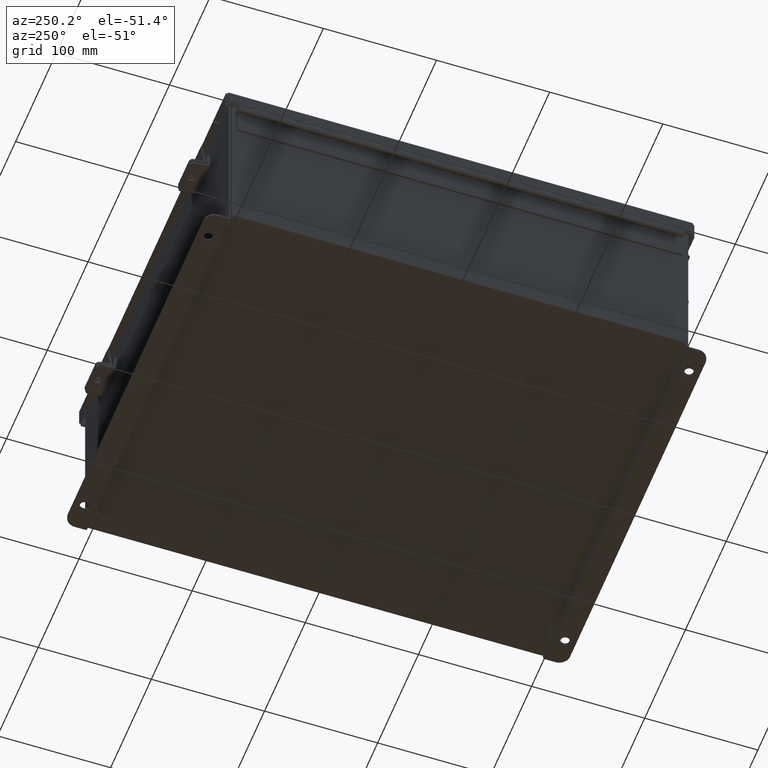
[diagram: clean part render]
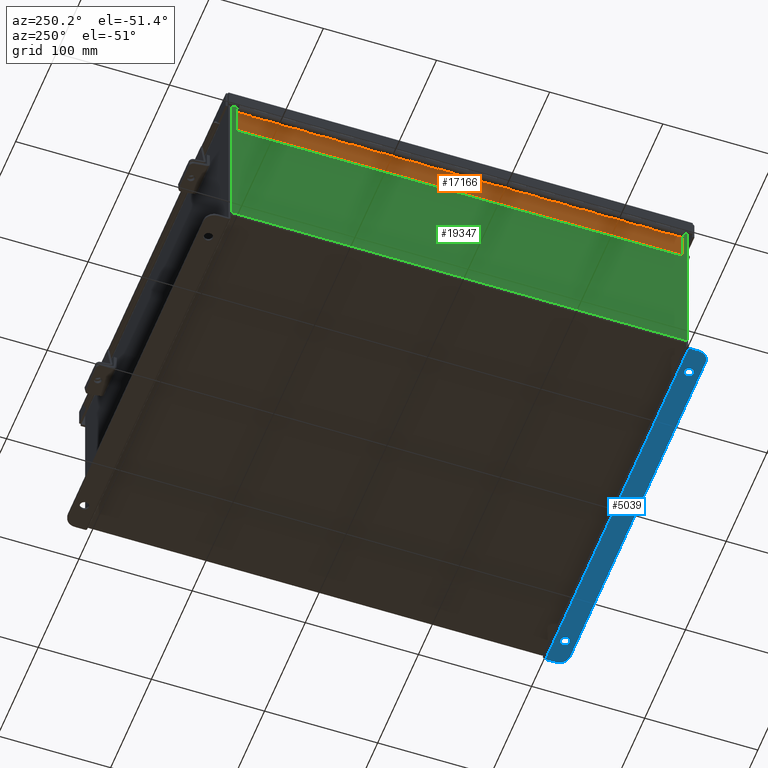
[diagram: same view with three faces highlighted in distinct colors, each labeled with its STEP entity id]
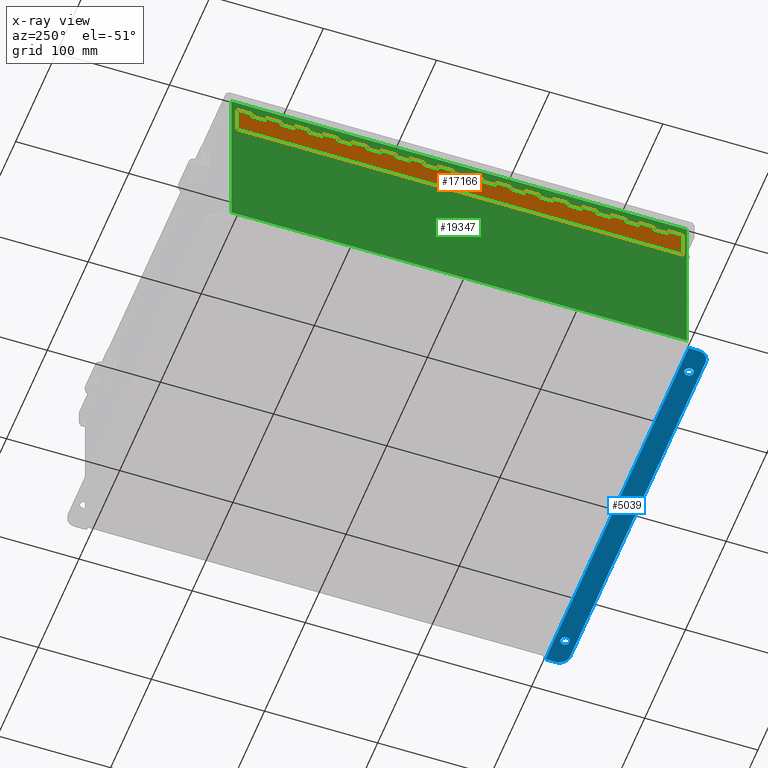
[diagram: x-ray of the same camera — body ghosted, the three highlighted faces saturated]
A machine part, auxiliary view with three faces highlighted in distinct colors.
The next image is the same camera in x-ray (body ghosted, the three faces saturated) — at least one of them is partly hidden behind the body in this view.
Their STEP definitions:

[orange] entity #17166 — the highlighted planar face has unit normal (1, -0, 0).
#4 = VERTEX_POINT ( 'NONE', #3290 ) ;
#59 = EDGE_CURVE ( 'NONE', #1313, #16077, #1245, .T. ) ;
#83 = ORIENTED_EDGE ( 'NONE', *, *, #4567, .F. ) ;
#87 = CARTESIAN_POINT ( 'NONE',  ( 0.2730000000000000200, 10.50000000000000200, 0.0000000000000000000 ) ) ;
#101 = EDGE_CURVE ( 'NONE', #19227, #7556, #12631, .T. ) ;
#146 = VECTOR ( 'NONE', #17403, 39.37007874015748100 ) ;
#159 = LINE ( 'NONE', #1533, #11510 ) ;
#189 = EDGE_CURVE ( 'NONE', #11200, #4211, #19957, .T. ) ;
#198 = CARTESIAN_POINT ( 'NONE',  ( 0.0000000000000000000, 1.000000000000001300, 0.0000000000000000000 ) ) ;
#202 = EDGE_CURVE ( 'NONE', #13085, #4, #2440, .T. ) ;
#257 = VERTEX_POINT ( 'NONE', #10617 ) ;
#272 = VECTOR ( 'NONE', #19352, 39.37007874015748100 ) ;
#294 = CARTESIAN_POINT ( 'NONE',  ( 0.1365000000000000100, 1.000000000000001300, -1.707404996040164500E-017 ) ) ;
#350 = EDGE_CURVE ( 'NONE', #15149, #7556, #1547, .T. ) ;
#378 = EDGE_CURVE ( 'NONE', #9309, #16077, #17047, .T. ) ;
#428 = ORIENTED_EDGE ( 'NONE', *, *, #15104, .F. ) ;
#748 = LINE ( 'NONE', #7246, #4814 ) ;
#780 = CARTESIAN_POINT ( 'NONE',  ( 0.1365000000000000100, 8.000000000000001800, -1.707404996040164500E-017 ) ) ;
#782 = ORIENTED_EDGE ( 'NONE', *, *, #13279, .T. ) ;
#806 = LINE ( 'NONE', #7192, #5353 ) ;
#840 = CARTESIAN_POINT ( 'NONE',  ( 0.2730000000000000200, -5.000000000000000000, 0.0000000000000000000 ) ) ;
#916 = DIRECTION ( 'NONE',  ( 0.0000000000000000000, 1.000000000000000000, 0.0000000000000000000 ) ) ;
#952 = VERTEX_POINT ( 'NONE', #294 ) ;
#978 = VERTEX_POINT ( 'NONE', #20155 ) ;
#1014 = VERTEX_POINT ( 'NONE', #14761 ) ;
#1051 = VECTOR ( 'NONE', #7395, 39.37007874015748100 ) ;
#1084 = VECTOR ( 'NONE', #10204, 39.37007874015748100 ) ;
#1087 = VECTOR ( 'NONE', #19002, 39.37007874015748100 ) ;
#1098 = VECTOR ( 'NONE', #2212, 39.37007874015748100 ) ;
#1099 = VERTEX_POINT ( 'NONE', #9786 ) ;
#1227 = VERTEX_POINT ( 'NONE', #7136 ) ;
#1245 = LINE ( 'NONE', #6252, #1739 ) ;
#1282 = CARTESIAN_POINT ( 'NONE',  ( 0.2730000000000000200, 11.50000000000000400, 0.0000000000000000000 ) ) ;
#1295 = ORIENTED_EDGE ( 'NONE', *, *, #2636, .F. ) ;
#1313 = VERTEX_POINT ( 'NONE', #11500 ) ;
#1333 = VECTOR ( 'NONE', #10384, 39.37007874015748100 ) ;
#1336 = VERTEX_POINT ( 'NONE', #11692 ) ;
#1338 = CARTESIAN_POINT ( 'NONE',  ( 0.2730000000000000200, -13.00000000000000000, 0.0000000000000000000 ) ) ;
#1339 = CARTESIAN_POINT ( 'NONE',  ( -1.160785228077123600E-013, 7.500000000000001800, 0.0000000000000000000 ) ) ;
#1353 = EDGE_CURVE ( 'NONE', #15113, #16821, #10449, .T. ) ;
#1411 = ORIENTED_EDGE ( 'NONE', *, *, #3300, .T. ) ;
#1506 = VERTEX_POINT ( 'NONE', #9437 ) ;
#1533 = CARTESIAN_POINT ( 'NONE',  ( 0.2730000000000000200, -8.000000000000000000, 0.0000000000000000000 ) ) ;
#1542 = VECTOR ( 'NONE', #8995, 39.37007874015748100 ) ;
#1544 = LINE ( 'NONE', #6494, #17530 ) ;
#1547 = LINE ( 'NONE', #6874, #1051 ) ;
#1712 = VERTEX_POINT ( 'NONE', #4932 ) ;
#1739 = VECTOR ( 'NONE', #3591, 39.37007874015748100 ) ;
#1756 = DIRECTION ( 'NONE',  ( -1.000000000000000000, 0.0000000000000000000, 0.0000000000000000000 ) ) ;
#1791 = ORIENTED_EDGE ( 'NONE', *, *, #3676, .F. ) ;
#1800 = VECTOR ( 'NONE', #19040, 39.37007874015748100 ) ;
#1836 = VECTOR ( 'NONE', #1756, 39.37007874015748100 ) ;
#1895 = ORIENTED_EDGE ( 'NONE', *, *, #11982, .F. ) ;
#1946 = CARTESIAN_POINT ( 'NONE',  ( 0.1365000000000000100, 14.50000000000000400, -1.707404996040164500E-017 ) ) ;
#1948 = DIRECTION ( 'NONE',  ( 0.0000000000000000000, 1.000000000000000000, 0.0000000000000000000 ) ) ;
#1971 = CARTESIAN_POINT ( 'NONE',  ( 0.2730000000000000200, 7.500000000000003600, 0.0000000000000000000 ) ) ;
#2041 = CARTESIAN_POINT ( 'NONE',  ( 0.0000000000000000000, 10.00000000000000000, 0.0000000000000000000 ) ) ;
#2050 = LINE ( 'NONE', #12326, #18046 ) ;
#2118 = EDGE_CURVE ( 'NONE', #952, #1506, #12160, .T. ) ;
#2212 = DIRECTION ( 'NONE',  ( -1.000000000000000000, 0.0000000000000000000, 0.0000000000000000000 ) ) ;
#2220 = ORIENTED_EDGE ( 'NONE', *, *, #11189, .F. ) ;
#2273 = ORIENTED_EDGE ( 'NONE', *, *, #14740, .F. ) ;
#2439 = DIRECTION ( 'NONE',  ( 0.0000000000000000000, 1.000000000000000000, 0.0000000000000000000 ) ) ;
#2440 = LINE ( 'NONE', #1338, #6980 ) ;
#2504 = CARTESIAN_POINT ( 'NONE',  ( 0.2730000000000000200, 1.000000000000001300, 0.0000000000000000000 ) ) ;
#2519 = EDGE_CURVE ( 'NONE', #10473, #13422, #8927, .T. ) ;
#2529 = CARTESIAN_POINT ( 'NONE',  ( 0.0000000000000000000, 6.000000000000000900, 0.0000000000000000000 ) ) ;
#2596 = DIRECTION ( 'NONE',  ( 0.0000000000000000000, 1.000000000000000000, 0.0000000000000000000 ) ) ;
#2617 = ORIENTED_EDGE ( 'NONE', *, *, #4794, .F. ) ;
#2636 = EDGE_CURVE ( 'NONE', #2684, #13422, #11139, .T. ) ;
#2651 = FACE_OUTER_BOUND ( 'NONE', #17413, .T. ) ;
#2657 = DIRECTION ( 'NONE',  ( -1.000000000000000000, 0.0000000000000000000, 0.0000000000000000000 ) ) ;
#2667 = EDGE_CURVE ( 'NONE', #16123, #2684, #6981, .T. ) ;
#2680 = LINE ( 'NONE', #14773, #6735 ) ;
#2684 = VERTEX_POINT ( 'NONE', #11069 ) ;
#2706 = LINE ( 'NONE', #15642, #6099 ) ;
#2760 = EDGE_CURVE ( 'NONE', #7948, #16123, #9171, .T. ) ;
#2787 = LINE ( 'NONE', #14822, #14682 ) ;
#2796 = VERTEX_POINT ( 'NONE', #1971 ) ;
#2825 = EDGE_CURVE ( 'NONE', #13029, #19140, #3657, .T. ) ;
#2868 = ORIENTED_EDGE ( 'NONE', *, *, #7107, .F. ) ;
#2901 = EDGE_CURVE ( 'NONE', #19140, #1712, #10877, .T. ) ;
#2908 = EDGE_CURVE ( 'NONE', #6119, #15113, #2680, .T. ) ;
#2932 = VECTOR ( 'NONE', #3333, 39.37007874015748100 ) ;
#3030 = VERTEX_POINT ( 'NONE', #4721 ) ;
#3049 = ORIENTED_EDGE ( 'NONE', *, *, #4043, .F. ) ;
#3084 = EDGE_CURVE ( 'NONE', #11200, #6119, #748, .T. ) ;
#3088 = CARTESIAN_POINT ( 'NONE',  ( -1.160785228077123600E-013, 9.500000000000000000, 0.0000000000000000000 ) ) ;
#3099 = CARTESIAN_POINT ( 'NONE',  ( 0.2730000000000000200, -7.000000000000000000, 0.0000000000000000000 ) ) ;
#3124 = CARTESIAN_POINT ( 'NONE',  ( 0.1365000000000000100, 7.000000000000000900, -1.707404996040164500E-017 ) ) ;
#3167 = CARTESIAN_POINT ( 'NONE',  ( 0.2730000000000000200, 1.500000000000003100, 0.0000000000000000000 ) ) ;
#3240 = CARTESIAN_POINT ( 'NONE',  ( 0.1365000000000000100, 15.00000000000000000, -1.707404996040164500E-017 ) ) ;
#3241 = ORIENTED_EDGE ( 'NONE', *, *, #2519, .T. ) ;
#3257 = ORIENTED_EDGE ( 'NONE', *, *, #12432, .F. ) ;
#3290 = CARTESIAN_POINT ( 'NONE',  ( 0.2730000000000000200, 2.000000000000000400, 0.0000000000000000000 ) ) ;
#3291 = DIRECTION ( 'NONE',  ( 0.0000000000000000000, 1.000000000000000000, 0.0000000000000000000 ) ) ;
#3293 = ORIENTED_EDGE ( 'NONE', *, *, #11869, .F. ) ;
#3300 = EDGE_CURVE ( 'NONE', #7948, #1712, #10134, .T. ) ;
#3302 = DIRECTION ( 'NONE',  ( 0.0000000000000000000, 1.000000000000000000, 0.0000000000000000000 ) ) ;
#3311 = CARTESIAN_POINT ( 'NONE',  ( 0.1364999999999999000, 0.0000000000000000000, 0.0000000000000000000 ) ) ;
#3333 = DIRECTION ( 'NONE',  ( 0.0000000000000000000, 1.000000000000000000, 0.0000000000000000000 ) ) ;
#3338 = CARTESIAN_POINT ( 'NONE',  ( 0.1365000000000000100, 14.00000000000000200, -1.707404996040164500E-017 ) ) ;
#3468 = ORIENTED_EDGE ( 'NONE', *, *, #17345, .F. ) ;
#3489 = EDGE_CURVE ( 'NONE', #11018, #13029, #4097, .T. ) ;
#3512 = CARTESIAN_POINT ( 'NONE',  ( 0.1365000000000000100, 5.500000000000002700, -1.707404996040164500E-017 ) ) ;
#3591 = DIRECTION ( 'NONE',  ( -1.000000000000000000, -8.005415366049128100E-015, 0.0000000000000000000 ) ) ;
#3596 = DIRECTION ( 'NONE',  ( -1.000000000000000000, -8.005415366049128100E-015, 0.0000000000000000000 ) ) ;
#3657 = LINE ( 'NONE', #12115, #15539 ) ;
#3676 = EDGE_CURVE ( 'NONE', #19227, #10600, #16713, .T. ) ;
#3722 = EDGE_CURVE ( 'NONE', #11018, #19893, #15763, .T. ) ;
#3810 = LINE ( 'NONE', #15834, #12047 ) ;
#3912 = LINE ( 'NONE', #16416, #19022 ) ;
#3914 = VERTEX_POINT ( 'NONE', #3512 ) ;
#3923 = VERTEX_POINT ( 'NONE', #1946 ) ;
#4023 = CARTESIAN_POINT ( 'NONE',  ( 0.1365000000000000100, 0.0000000000000000000, -1.707404996040164500E-017 ) ) ;
#4043 = EDGE_CURVE ( 'NONE', #14133, #19893, #18687, .T. ) ;
#4061 = VERTEX_POINT ( 'NONE', #14301 ) ;
#4070 = DIRECTION ( 'NONE',  ( -1.000000000000000000, 0.0000000000000000000, 0.0000000000000000000 ) ) ;
#4097 = LINE ( 'NONE', #12610, #7186 ) ;
#4100 = EDGE_CURVE ( 'NONE', #15616, #9035, #6248, .T. ) ;
#4136 = ORIENTED_EDGE ( 'NONE', *, *, #17951, .T. ) ;
#4201 = EDGE_CURVE ( 'NONE', #2796, #9035, #4476, .T. ) ;
#4211 = VERTEX_POINT ( 'NONE', #12856 ) ;
#4222 = VECTOR ( 'NONE', #12846, 39.37007874015748100 ) ;
#4224 = CARTESIAN_POINT ( 'NONE',  ( 1.136499999999999800, 15.50000000000000000, 0.0000000000000000000 ) ) ;
#4313 = EDGE_CURVE ( 'NONE', #2796, #5692, #7591, .T. ) ;
#4332 = VECTOR ( 'NONE', #9000, 39.37007874015748100 ) ;
#4381 = VERTEX_POINT ( 'NONE', #7592 ) ;
#4384 = VECTOR ( 'NONE', #18926, 39.37007874015748100 ) ;
#4396 = ORIENTED_EDGE ( 'NONE', *, *, #101, .T. ) ;
#4464 = EDGE_CURVE ( 'NONE', #5692, #14133, #12980, .T. ) ;
#4476 = LINE ( 'NONE', #1339, #12254 ) ;
#4489 = EDGE_CURVE ( 'NONE', #12118, #1336, #9296, .T. ) ;
#4567 = EDGE_CURVE ( 'NONE', #18417, #15616, #2787, .T. ) ;
#4591 = DIRECTION ( 'NONE',  ( 0.0000000000000000000, 1.000000000000000000, 0.0000000000000000000 ) ) ;
#4594 = CARTESIAN_POINT ( 'NONE',  ( 0.1365000000000000100, 6.500000000000003600, -1.707404996040164500E-017 ) ) ;
#4643 = ORIENTED_EDGE ( 'NONE', *, *, #189, .F. ) ;
#4648 = DIRECTION ( 'NONE',  ( 0.0000000000000000000, 1.000000000000000000, 0.0000000000000000000 ) ) ;
#4652 = LINE ( 'NONE', #16773, #1542 ) ;
#4694 = LINE ( 'NONE', #12781, #1087 ) ;
#4695 = EDGE_CURVE ( 'NONE', #978, #12118, #13968, .T. ) ;
#4721 = CARTESIAN_POINT ( 'NONE',  ( 0.2730000000000000200, 13.00000000000000000, 0.0000000000000000000 ) ) ;
#4792 = LINE ( 'NONE', #17025, #19912 ) ;
#4794 = EDGE_CURVE ( 'NONE', #1014, #18417, #159, .T. ) ;
#4814 = VECTOR ( 'NONE', #19745, 39.37007874015748100 ) ;
#4819 = EDGE_CURVE ( 'NONE', #1336, #15588, #12016, .T. ) ;
#4824 = EDGE_CURVE ( 'NONE', #1014, #15588, #19837, .T. ) ;
#4835 = VECTOR ( 'NONE', #18192, 39.37007874015748100 ) ;
#4908 = ORIENTED_EDGE ( 'NONE', *, *, #3489, .F. ) ;
#4932 = CARTESIAN_POINT ( 'NONE',  ( 0.1365000000000000100, 9.500000000000003600, -1.707404996040164500E-017 ) ) ;
#5058 = CARTESIAN_POINT ( 'NONE',  ( -1.160785228077123600E-013, 6.500000000000000900, 0.0000000000000000000 ) ) ;
#5126 = CARTESIAN_POINT ( 'NONE',  ( -1.160785228077123600E-013, 10.50000000000000200, 0.0000000000000000000 ) ) ;
#5154 = CARTESIAN_POINT ( 'NONE',  ( 0.1365000000000000100, 11.50000000000000400, -1.707404996040164500E-017 ) ) ;
#5244 = EDGE_CURVE ( 'NONE', #9989, #14835, #12497, .T. ) ;
#5324 = CARTESIAN_POINT ( 'NONE',  ( 0.2730000000000000200, 11.00000000000000000, 0.0000000000000000000 ) ) ;
#5353 = VECTOR ( 'NONE', #13508, 39.37007874015748100 ) ;
#5374 = ORIENTED_EDGE ( 'NONE', *, *, #2901, .F. ) ;
#5415 = VECTOR ( 'NONE', #15313, 39.37007874015748100 ) ;
#5426 = CARTESIAN_POINT ( 'NONE',  ( 0.1365000000000000100, 10.50000000000000200, -1.707404996040164500E-017 ) ) ;
#5692 = VERTEX_POINT ( 'NONE', #6878 ) ;
#5732 = DIRECTION ( 'NONE',  ( -1.000000000000000000, 0.0000000000000000000, 0.0000000000000000000 ) ) ;
#5865 = CARTESIAN_POINT ( 'NONE',  ( -1.160785228077123600E-013, 11.50000000000000200, 0.0000000000000000000 ) ) ;
#5899 = VECTOR ( 'NONE', #9098, 39.37007874015748100 ) ;
#5976 = CARTESIAN_POINT ( 'NONE',  ( 0.0000000000000000000, 8.000000000000001800, 0.0000000000000000000 ) ) ;
#5983 = ORIENTED_EDGE ( 'NONE', *, *, #202, .F. ) ;
#6099 = VECTOR ( 'NONE', #3302, 39.37007874015748100 ) ;
#6108 = EDGE_CURVE ( 'NONE', #11795, #15149, #20041, .T. ) ;
#6119 = VERTEX_POINT ( 'NONE', #7341 ) ;
#6150 = CARTESIAN_POINT ( 'NONE',  ( 0.1365000000000000100, 0.0000000000000000000, -1.707404996040164500E-017 ) ) ;
#6237 = DIRECTION ( 'NONE',  ( 0.0000000000000000000, 1.000000000000000000, 0.0000000000000000000 ) ) ;
#6248 = LINE ( 'NONE', #19700, #16984 ) ;
#6252 = CARTESIAN_POINT ( 'NONE',  ( -1.160785228077123600E-013, 4.500000000000000900, 0.0000000000000000000 ) ) ;
#6359 = CARTESIAN_POINT ( 'NONE',  ( 0.0000000000000000000, 13.00000000000000000, 0.0000000000000000000 ) ) ;
#6365 = CARTESIAN_POINT ( 'NONE',  ( -1.160785228077123600E-013, 5.500000000000000900, 0.0000000000000000000 ) ) ;
#6423 = ORIENTED_EDGE ( 'NONE', *, *, #9482, .T. ) ;
#6429 = CARTESIAN_POINT ( 'NONE',  ( 0.0000000000000000000, 15.50000000000000000, 0.0000000000000000000 ) ) ;
#6450 = VERTEX_POINT ( 'NONE', #19379 ) ;
#6486 = DIRECTION ( 'NONE',  ( 0.0000000000000000000, 1.000000000000000000, 0.0000000000000000000 ) ) ;
#6494 = CARTESIAN_POINT ( 'NONE',  ( 0.1365000000000000100, 0.0000000000000000000, -1.707404996040164500E-017 ) ) ;
#6550 = ORIENTED_EDGE ( 'NONE', *, *, #3722, .T. ) ;
#6639 = DIRECTION ( 'NONE',  ( 0.0000000000000000000, 1.000000000000000000, 0.0000000000000000000 ) ) ;
#6695 = CARTESIAN_POINT ( 'NONE',  ( 0.0000000000000000000, 4.000000000000000900, 0.0000000000000000000 ) ) ;
#6708 = ORIENTED_EDGE ( 'NONE', *, *, #350, .F. ) ;
#6735 = VECTOR ( 'NONE', #10540, 39.37007874015748100 ) ;
#6835 = LINE ( 'NONE', #20070, #5899 ) ;
#6872 = ORIENTED_EDGE ( 'NONE', *, *, #6108, .F. ) ;
#6874 = CARTESIAN_POINT ( 'NONE',  ( 0.1365000000000000100, 0.0000000000000000000, -1.707404996040164500E-017 ) ) ;
#6878 = CARTESIAN_POINT ( 'NONE',  ( 0.2730000000000000200, 8.000000000000001800, 0.0000000000000000000 ) ) ;
#6883 = AXIS2_PLACEMENT_3D ( 'NONE', #4224, #18129, #15082 ) ;
#6891 = VERTEX_POINT ( 'NONE', #15139 ) ;
#6962 = VECTOR ( 'NONE', #10655, 39.37007874015748100 ) ;
#6980 = VECTOR ( 'NONE', #2596, 39.37007874015748100 ) ;
#6981 = LINE ( 'NONE', #2041, #14342 ) ;
#7021 = VECTOR ( 'NONE', #3596, 39.37007874015748100 ) ;
#7041 = VECTOR ( 'NONE', #2439, 39.37007874015748100 ) ;
#7085 = LINE ( 'NONE', #9418, #10749 ) ;
#7107 = EDGE_CURVE ( 'NONE', #4, #1227, #3912, .T. ) ;
#7127 = ORIENTED_EDGE ( 'NONE', *, *, #11752, .F. ) ;
#7134 = CARTESIAN_POINT ( 'NONE',  ( 0.2730000000000000200, -2.999999999999999600, 0.0000000000000000000 ) ) ;
#7136 = CARTESIAN_POINT ( 'NONE',  ( 0.1365000000000000100, 2.000000000000000400, -1.707404996040164500E-017 ) ) ;
#7152 = ORIENTED_EDGE ( 'NONE', *, *, #19048, .F. ) ;
#7172 = VECTOR ( 'NONE', #4591, 39.37007874015748100 ) ;
#7186 = VECTOR ( 'NONE', #4648, 39.37007874015748100 ) ;
#7192 = CARTESIAN_POINT ( 'NONE',  ( 0.2730000000000000200, -11.99999999999999800, 0.0000000000000000000 ) ) ;
#7198 = VERTEX_POINT ( 'NONE', #9032 ) ;
#7229 = CARTESIAN_POINT ( 'NONE',  ( 0.1365000000000000100, 0.0000000000000000000, -1.707404996040164500E-017 ) ) ;
#7246 = CARTESIAN_POINT ( 'NONE',  ( 0.0000000000000000000, 0.0000000000000000000, 0.0000000000000000000 ) ) ;
#7261 = ORIENTED_EDGE ( 'NONE', *, *, #4695, .F. ) ;
#7341 = CARTESIAN_POINT ( 'NONE',  ( 1.136500000000000100, 0.0000000000000000000, 0.0000000000000000000 ) ) ;
#7365 = DIRECTION ( 'NONE',  ( -1.000000000000000000, -8.005415366049128100E-015, 0.0000000000000000000 ) ) ;
#7367 = DIRECTION ( 'NONE',  ( -1.000000000000000000, 0.0000000000000000000, 0.0000000000000000000 ) ) ;
#7386 = DIRECTION ( 'NONE',  ( -1.000000000000000000, -8.005415366049128100E-015, 0.0000000000000000000 ) ) ;
#7395 = DIRECTION ( 'NONE',  ( 0.0000000000000000000, 1.000000000000000000, 0.0000000000000000000 ) ) ;
#7403 = CARTESIAN_POINT ( 'NONE',  ( 0.2730000000000000200, 9.000000000000001800, 0.0000000000000000000 ) ) ;
#7433 = VECTOR ( 'NONE', #7365, 39.37007874015748100 ) ;
#7538 = CARTESIAN_POINT ( 'NONE',  ( 0.2730000000000000200, -11.00000000000000000, 0.0000000000000000000 ) ) ;
#7556 = VERTEX_POINT ( 'NONE', #15799 ) ;
#7566 = VERTEX_POINT ( 'NONE', #16605 ) ;
#7591 = LINE ( 'NONE', #3099, #11252 ) ;
#7592 = CARTESIAN_POINT ( 'NONE',  ( 0.1365000000000000100, 12.50000000000000400, -1.707404996040164500E-017 ) ) ;
#7689 = ORIENTED_EDGE ( 'NONE', *, *, #17443, .F. ) ;
#7948 = VERTEX_POINT ( 'NONE', #12562 ) ;
#8294 = LINE ( 'NONE', #11262, #4222 ) ;
#8440 = VECTOR ( 'NONE', #15443, 39.37007874015748100 ) ;
#8512 = LINE ( 'NONE', #5865, #16351 ) ;
#8585 = VERTEX_POINT ( 'NONE', #16664 ) ;
#8640 = ORIENTED_EDGE ( 'NONE', *, *, #19106, .F. ) ;
#8700 = DIRECTION ( 'NONE',  ( -1.000000000000000000, 0.0000000000000000000, 0.0000000000000000000 ) ) ;
#8729 = VECTOR ( 'NONE', #6639, 39.37007874015748100 ) ;
#8766 = LINE ( 'NONE', #7134, #1084 ) ;
#8772 = PLANE ( 'NONE',  #6883 ) ;
#8927 = LINE ( 'NONE', #5126, #4835 ) ;
#8945 = DIRECTION ( 'NONE',  ( -1.000000000000000000, 0.0000000000000000000, 0.0000000000000000000 ) ) ;
#8995 = DIRECTION ( 'NONE',  ( 0.0000000000000000000, 1.000000000000000000, 0.0000000000000000000 ) ) ;
#9000 = DIRECTION ( 'NONE',  ( 0.0000000000000000000, 1.000000000000000000, 0.0000000000000000000 ) ) ;
#9005 = CARTESIAN_POINT ( 'NONE',  ( 0.1365000000000000100, 0.0000000000000000000, -1.707404996040164500E-017 ) ) ;
#9032 = CARTESIAN_POINT ( 'NONE',  ( 0.2730000000000000200, 0.5000000000000040000, 0.0000000000000000000 ) ) ;
#9034 = CARTESIAN_POINT ( 'NONE',  ( 0.2730000000000000200, 13.50000000000000400, 0.0000000000000000000 ) ) ;
#9035 = VERTEX_POINT ( 'NONE', #17723 ) ;
#9098 = DIRECTION ( 'NONE',  ( 0.0000000000000000000, 1.000000000000000000, 0.0000000000000000000 ) ) ;
#9125 = CARTESIAN_POINT ( 'NONE',  ( -1.160785228077123600E-013, 8.500000000000001800, 0.0000000000000000000 ) ) ;
#9171 = LINE ( 'NONE', #840, #13340 ) ;
#9172 = CARTESIAN_POINT ( 'NONE',  ( 0.0000000000000000000, 11.00000000000000000, 0.0000000000000000000 ) ) ;
#9262 = LINE ( 'NONE', #9172, #9747 ) ;
#9296 = LINE ( 'NONE', #2529, #12491 ) ;
#9309 = VERTEX_POINT ( 'NONE', #19939 ) ;
#9418 = CARTESIAN_POINT ( 'NONE',  ( 0.2730000000000000200, -10.00000000000000000, 0.0000000000000000000 ) ) ;
#9437 = CARTESIAN_POINT ( 'NONE',  ( 0.1365000000000000100, 1.500000000000003100, -1.707404996040164500E-017 ) ) ;
#9482 = EDGE_CURVE ( 'NONE', #978, #3914, #16662, .T. ) ;
#9520 = ORIENTED_EDGE ( 'NONE', *, *, #4100, .F. ) ;
#9524 = EDGE_CURVE ( 'NONE', #18338, #1099, #3810, .T. ) ;
#9627 = VECTOR ( 'NONE', #14194, 39.37007874015748100 ) ;
#9699 = VECTOR ( 'NONE', #7367, 39.37007874015748100 ) ;
#9747 = VECTOR ( 'NONE', #16952, 39.37007874015748100 ) ;
#9786 = CARTESIAN_POINT ( 'NONE',  ( 0.2730000000000000200, 15.00000000000000000, 0.0000000000000000000 ) ) ;
#9876 = CARTESIAN_POINT ( 'NONE',  ( 0.1365000000000000100, 11.00000000000000000, -1.707404996040164500E-017 ) ) ;
#9897 = CARTESIAN_POINT ( 'NONE',  ( -1.160785228077123600E-013, 13.50000000000000200, 0.0000000000000000000 ) ) ;
#9975 = LINE ( 'NONE', #15945, #1800 ) ;
#9989 = VERTEX_POINT ( 'NONE', #17089 ) ;
#10028 = DIRECTION ( 'NONE',  ( 0.0000000000000000000, 1.000000000000000000, 0.0000000000000000000 ) ) ;
#10134 = LINE ( 'NONE', #3088, #6962 ) ;
#10204 = DIRECTION ( 'NONE',  ( 0.0000000000000000000, 1.000000000000000000, 0.0000000000000000000 ) ) ;
#10323 = VERTEX_POINT ( 'NONE', #9034 ) ;
#10384 = DIRECTION ( 'NONE',  ( -1.000000000000000000, 0.0000000000000000000, 0.0000000000000000000 ) ) ;
#10449 = LINE ( 'NONE', #6429, #10938 ) ;
#10473 = VERTEX_POINT ( 'NONE', #87 ) ;
#10514 = CARTESIAN_POINT ( 'NONE',  ( 0.2730000000000000200, 8.500000000000003600, 0.0000000000000000000 ) ) ;
#10534 = ORIENTED_EDGE ( 'NONE', *, *, #59, .T. ) ;
#10540 = DIRECTION ( 'NONE',  ( -8.812412882787946000E-018, 1.000000000000000000, 0.0000000000000000000 ) ) ;
#10600 = VERTEX_POINT ( 'NONE', #14310 ) ;
#10617 = CARTESIAN_POINT ( 'NONE',  ( 0.2730000000000000200, 12.00000000000000200, 0.0000000000000000000 ) ) ;
#10618 = CARTESIAN_POINT ( 'NONE',  ( 0.1365000000000000100, 0.0000000000000000000, -1.707404996040164500E-017 ) ) ;
#10655 = DIRECTION ( 'NONE',  ( -1.000000000000000000, -8.005415366049128100E-015, 0.0000000000000000000 ) ) ;
#10749 = VECTOR ( 'NONE', #18798, 39.37007874015748100 ) ;
#10786 = CARTESIAN_POINT ( 'NONE',  ( 0.1365000000000000100, 0.0000000000000000000, -1.707404996040164500E-017 ) ) ;
#10809 = CARTESIAN_POINT ( 'NONE',  ( 0.2730000000000000200, 10.00000000000000000, 0.0000000000000000000 ) ) ;
#10826 = DIRECTION ( 'NONE',  ( 0.0000000000000000000, 1.000000000000000000, 0.0000000000000000000 ) ) ;
#10877 = LINE ( 'NONE', #10786, #19207 ) ;
#10938 = VECTOR ( 'NONE', #12387, 39.37007874015748100 ) ;
#11018 = VERTEX_POINT ( 'NONE', #10514 ) ;
#11069 = CARTESIAN_POINT ( 'NONE',  ( 0.1365000000000000100, 10.00000000000000000, -1.707404996040164500E-017 ) ) ;
#11075 = ORIENTED_EDGE ( 'NONE', *, *, #18709, .F. ) ;
#11098 = DIRECTION ( 'NONE',  ( 0.0000000000000000000, 1.000000000000000000, 0.0000000000000000000 ) ) ;
#11139 = LINE ( 'NONE', #17804, #2932 ) ;
#11169 = VERTEX_POINT ( 'NONE', #3240 ) ;
#11189 = EDGE_CURVE ( 'NONE', #16014, #952, #14190, .T. ) ;
#11200 = VERTEX_POINT ( 'NONE', #3311 ) ;
#11218 = VECTOR ( 'NONE', #16871, 39.37007874015748100 ) ;
#11238 = ORIENTED_EDGE ( 'NONE', *, *, #2908, .T. ) ;
#11252 = VECTOR ( 'NONE', #19961, 39.37007874015748100 ) ;
#11262 = CARTESIAN_POINT ( 'NONE',  ( -1.160785228077123600E-013, 1.500000000000000900, 0.0000000000000000000 ) ) ;
#11303 = VECTOR ( 'NONE', #11467, 39.37007874015748100 ) ;
#11348 = EDGE_CURVE ( 'NONE', #10600, #9309, #20087, .T. ) ;
#11369 = DIRECTION ( 'NONE',  ( -1.000000000000000000, -8.005415366049128100E-015, 0.0000000000000000000 ) ) ;
#11467 = DIRECTION ( 'NONE',  ( -1.000000000000000000, -8.005415366049128100E-015, 0.0000000000000000000 ) ) ;
#11500 = CARTESIAN_POINT ( 'NONE',  ( 0.2730000000000000200, 4.500000000000002700, 0.0000000000000000000 ) ) ;
#11510 = VECTOR ( 'NONE', #11098, 39.37007874015748100 ) ;
#11617 = ORIENTED_EDGE ( 'NONE', *, *, #12231, .F. ) ;
#11665 = LINE ( 'NONE', #16048, #7021 ) ;
#11676 = ORIENTED_EDGE ( 'NONE', *, *, #18884, .F. ) ;
#11692 = CARTESIAN_POINT ( 'NONE',  ( 0.1365000000000000100, 6.000000000000000900, -1.707404996040164500E-017 ) ) ;
#11752 = EDGE_CURVE ( 'NONE', #11169, #16821, #17818, .T. ) ;
#11795 = VERTEX_POINT ( 'NONE', #16907 ) ;
#11869 = EDGE_CURVE ( 'NONE', #1313, #6891, #7085, .T. ) ;
#11937 = VERTEX_POINT ( 'NONE', #14219 ) ;
#11982 = EDGE_CURVE ( 'NONE', #1099, #11169, #4694, .T. ) ;
#12004 = EDGE_CURVE ( 'NONE', #13085, #1506, #8294, .T. ) ;
#12016 = LINE ( 'NONE', #10618, #15203 ) ;
#12034 = VERTEX_POINT ( 'NONE', #5154 ) ;
#12047 = VECTOR ( 'NONE', #6486, 39.37007874015748100 ) ;
#12115 = CARTESIAN_POINT ( 'NONE',  ( 0.0000000000000000000, 9.000000000000001800, 0.0000000000000000000 ) ) ;
#12118 = VERTEX_POINT ( 'NONE', #17784 ) ;
#12132 = LINE ( 'NONE', #9897, #272 ) ;
#12160 = LINE ( 'NONE', #18268, #4384 ) ;
#12221 = VECTOR ( 'NONE', #4070, 39.37007874015748100 ) ;
#12231 = EDGE_CURVE ( 'NONE', #6891, #8585, #16353, .T. ) ;
#12254 = VECTOR ( 'NONE', #18446, 39.37007874015748100 ) ;
#12299 = ORIENTED_EDGE ( 'NONE', *, *, #5244, .T. ) ;
#12326 = CARTESIAN_POINT ( 'NONE',  ( 0.2730000000000000200, -2.000000000000000000, 0.0000000000000000000 ) ) ;
#12387 = DIRECTION ( 'NONE',  ( -1.000000000000000000, -0.0000000000000000000, -0.0000000000000000000 ) ) ;
#12432 = EDGE_CURVE ( 'NONE', #14104, #17945, #9262, .T. ) ;
#12491 = VECTOR ( 'NONE', #2657, 39.37007874015748100 ) ;
#12497 = LINE ( 'NONE', #12654, #146 ) ;
#12537 = CARTESIAN_POINT ( 'NONE',  ( 0.1365000000000000100, 9.000000000000001800, -1.707404996040164500E-017 ) ) ;
#12562 = CARTESIAN_POINT ( 'NONE',  ( 0.2730000000000000200, 9.500000000000003600, 0.0000000000000000000 ) ) ;
#12610 = CARTESIAN_POINT ( 'NONE',  ( 0.2730000000000000200, -5.999999999999999100, 0.0000000000000000000 ) ) ;
#12631 = LINE ( 'NONE', #18880, #8440 ) ;
#12643 = EDGE_CURVE ( 'NONE', #8585, #3914, #9975, .T. ) ;
#12654 = CARTESIAN_POINT ( 'NONE',  ( -1.160785228077123600E-013, 2.500000000000002200, 0.0000000000000000000 ) ) ;
#12726 = CARTESIAN_POINT ( 'NONE',  ( 0.1365000000000000100, 15.50000000000000000, -1.707404996040164500E-017 ) ) ;
#12781 = CARTESIAN_POINT ( 'NONE',  ( 0.0000000000000000000, 15.00000000000000000, 0.0000000000000000000 ) ) ;
#12818 = ORIENTED_EDGE ( 'NONE', *, *, #4819, .F. ) ;
#12820 = EDGE_CURVE ( 'NONE', #14459, #3923, #19043, .T. ) ;
#12846 = DIRECTION ( 'NONE',  ( -1.000000000000000000, -8.005415366049128100E-015, 0.0000000000000000000 ) ) ;
#12856 = CARTESIAN_POINT ( 'NONE',  ( 0.1365000000000000100, 0.5000000000000040000, -1.707404996040164500E-017 ) ) ;
#12980 = LINE ( 'NONE', #5976, #1098 ) ;
#13029 = VERTEX_POINT ( 'NONE', #7403 ) ;
#13030 = VECTOR ( 'NONE', #15705, 39.37007874015748100 ) ;
#13085 = VERTEX_POINT ( 'NONE', #3167 ) ;
#13279 = EDGE_CURVE ( 'NONE', #7198, #4211, #11665, .T. ) ;
#13340 = VECTOR ( 'NONE', #18453, 39.37007874015748100 ) ;
#13422 = VERTEX_POINT ( 'NONE', #5426 ) ;
#13495 = ORIENTED_EDGE ( 'NONE', *, *, #2760, .F. ) ;
#13508 = DIRECTION ( 'NONE',  ( 0.0000000000000000000, 1.000000000000000000, 0.0000000000000000000 ) ) ;
#13518 = DIRECTION ( 'NONE',  ( -1.000000000000000000, -8.005415366049128100E-015, 0.0000000000000000000 ) ) ;
#13765 = DIRECTION ( 'NONE',  ( -1.000000000000000000, 0.0000000000000000000, 0.0000000000000000000 ) ) ;
#13791 = LINE ( 'NONE', #6359, #9627 ) ;
#13929 = ORIENTED_EDGE ( 'NONE', *, *, #12820, .F. ) ;
#13968 = LINE ( 'NONE', #16636, #17605 ) ;
#13988 = CARTESIAN_POINT ( 'NONE',  ( 0.2730000000000000200, 7.000000000000000900, 0.0000000000000000000 ) ) ;
#14104 = VERTEX_POINT ( 'NONE', #5324 ) ;
#14133 = VERTEX_POINT ( 'NONE', #780 ) ;
#14190 = LINE ( 'NONE', #198, #1836 ) ;
#14194 = DIRECTION ( 'NONE',  ( -1.000000000000000000, 0.0000000000000000000, 0.0000000000000000000 ) ) ;
#14219 = CARTESIAN_POINT ( 'NONE',  ( 0.2730000000000000200, 12.50000000000000400, 0.0000000000000000000 ) ) ;
#14272 = ORIENTED_EDGE ( 'NONE', *, *, #15166, .T. ) ;
#14301 = CARTESIAN_POINT ( 'NONE',  ( 0.2730000000000000200, 14.00000000000000200, 0.0000000000000000000 ) ) ;
#14306 = ORIENTED_EDGE ( 'NONE', *, *, #16331, .T. ) ;
#14310 = CARTESIAN_POINT ( 'NONE',  ( 0.2730000000000000200, 4.000000000000000900, 0.0000000000000000000 ) ) ;
#14320 = DIRECTION ( 'NONE',  ( -1.000000000000000000, 0.0000000000000000000, 0.0000000000000000000 ) ) ;
#14342 = VECTOR ( 'NONE', #8945, 39.37007874015748100 ) ;
#14348 = CARTESIAN_POINT ( 'NONE',  ( 1.136500000000000100, 15.50000000000000000, 0.0000000000000000000 ) ) ;
#14366 = ORIENTED_EDGE ( 'NONE', *, *, #18111, .F. ) ;
#14380 = ORIENTED_EDGE ( 'NONE', *, *, #11348, .F. ) ;
#14429 = CARTESIAN_POINT ( 'NONE',  ( 0.1365000000000000100, 3.000000000000001800, -1.707404996040164500E-017 ) ) ;
#14435 = DIRECTION ( 'NONE',  ( -1.000000000000000000, 0.0000000000000000000, 0.0000000000000000000 ) ) ;
#14459 = VERTEX_POINT ( 'NONE', #3338 ) ;
#14489 = CARTESIAN_POINT ( 'NONE',  ( -1.160785228077123600E-013, 14.50000000000000200, 0.0000000000000000000 ) ) ;
#14529 = ORIENTED_EDGE ( 'NONE', *, *, #4824, .T. ) ;
#14608 = ORIENTED_EDGE ( 'NONE', *, *, #4201, .T. ) ;
#14682 = VECTOR ( 'NONE', #8700, 39.37007874015748100 ) ;
#14686 = ORIENTED_EDGE ( 'NONE', *, *, #15000, .F. ) ;
#14731 = ORIENTED_EDGE ( 'NONE', *, *, #4313, .F. ) ;
#14740 = EDGE_CURVE ( 'NONE', #4061, #14459, #16726, .T. ) ;
#14761 = CARTESIAN_POINT ( 'NONE',  ( 0.2730000000000000200, 6.500000000000003600, 0.0000000000000000000 ) ) ;
#14773 = CARTESIAN_POINT ( 'NONE',  ( 1.136500000000000100, 0.0000000000000000000, 0.0000000000000000000 ) ) ;
#14822 = CARTESIAN_POINT ( 'NONE',  ( 0.0000000000000000000, 7.000000000000000900, 0.0000000000000000000 ) ) ;
#14835 = VERTEX_POINT ( 'NONE', #20030 ) ;
#14959 = CARTESIAN_POINT ( 'NONE',  ( 0.0000000000000000000, 5.000000000000000000, 0.0000000000000000000 ) ) ;
#14964 = DIRECTION ( 'NONE',  ( 0.0000000000000000000, 1.000000000000000000, 0.0000000000000000000 ) ) ;
#15000 = EDGE_CURVE ( 'NONE', #10323, #4061, #2706, .T. ) ;
#15082 = DIRECTION ( 'NONE',  ( -1.000000000000000000, 0.0000000000000000000, -0.0000000000000000000 ) ) ;
#15104 = EDGE_CURVE ( 'NONE', #1227, #14835, #1544, .T. ) ;
#15113 = VERTEX_POINT ( 'NONE', #14348 ) ;
#15139 = CARTESIAN_POINT ( 'NONE',  ( 0.2730000000000000200, 5.000000000000000000, 0.0000000000000000000 ) ) ;
#15149 = VERTEX_POINT ( 'NONE', #14429 ) ;
#15166 = EDGE_CURVE ( 'NONE', #18338, #3923, #16080, .T. ) ;
#15203 = VECTOR ( 'NONE', #10028, 39.37007874015748100 ) ;
#15235 = ORIENTED_EDGE ( 'NONE', *, *, #2118, .F. ) ;
#15313 = DIRECTION ( 'NONE',  ( 0.0000000000000000000, 1.000000000000000000, 0.0000000000000000000 ) ) ;
#15396 = EDGE_CURVE ( 'NONE', #9989, #11795, #806, .T. ) ;
#15441 = VECTOR ( 'NONE', #916, 39.37007874015748100 ) ;
#15443 = DIRECTION ( 'NONE',  ( -1.000000000000000000, -8.005415366049128100E-015, 0.0000000000000000000 ) ) ;
#15487 = LINE ( 'NONE', #19261, #11303 ) ;
#15539 = VECTOR ( 'NONE', #5732, 39.37007874015748100 ) ;
#15588 = VERTEX_POINT ( 'NONE', #4594 ) ;
#15592 = VECTOR ( 'NONE', #11369, 39.37007874015748100 ) ;
#15616 = VERTEX_POINT ( 'NONE', #3124 ) ;
#15642 = CARTESIAN_POINT ( 'NONE',  ( 0.2730000000000000200, -1.000000000000000000, 0.0000000000000000000 ) ) ;
#15705 = DIRECTION ( 'NONE',  ( -1.000000000000000000, -8.005415366049128100E-015, 0.0000000000000000000 ) ) ;
#15733 = ORIENTED_EDGE ( 'NONE', *, *, #18906, .F. ) ;
#15763 = LINE ( 'NONE', #9125, #7433 ) ;
#15799 = CARTESIAN_POINT ( 'NONE',  ( 0.1365000000000000100, 3.500000000000003600, -1.707404996040164500E-017 ) ) ;
#15834 = CARTESIAN_POINT ( 'NONE',  ( 0.2730000000000000200, 0.0000000000000000000, 0.0000000000000000000 ) ) ;
#15871 = VECTOR ( 'NONE', #14320, 39.37007874015748100 ) ;
#15945 = CARTESIAN_POINT ( 'NONE',  ( 0.1365000000000000100, 0.0000000000000000000, -1.707404996040164500E-017 ) ) ;
#15968 = CARTESIAN_POINT ( 'NONE',  ( 0.1365000000000000100, 8.500000000000003600, -1.707404996040164500E-017 ) ) ;
#16009 = ORIENTED_EDGE ( 'NONE', *, *, #15396, .F. ) ;
#16014 = VERTEX_POINT ( 'NONE', #2504 ) ;
#16015 = ORIENTED_EDGE ( 'NONE', *, *, #12643, .F. ) ;
#16048 = CARTESIAN_POINT ( 'NONE',  ( -1.160785228077123600E-013, 0.5000000000000017800, 0.0000000000000000000 ) ) ;
#16077 = VERTEX_POINT ( 'NONE', #18619 ) ;
#16080 = LINE ( 'NONE', #14489, #15592 ) ;
#16123 = VERTEX_POINT ( 'NONE', #10809 ) ;
#16331 = EDGE_CURVE ( 'NONE', #10323, #6450, #12132, .T. ) ;
#16351 = VECTOR ( 'NONE', #7386, 39.37007874015748100 ) ;
#16353 = LINE ( 'NONE', #14959, #12221 ) ;
#16390 = VECTOR ( 'NONE', #14435, 39.37007874015748100 ) ;
#16416 = CARTESIAN_POINT ( 'NONE',  ( 0.0000000000000000000, 2.000000000000000400, 0.0000000000000000000 ) ) ;
#16513 = VERTEX_POINT ( 'NONE', #1282 ) ;
#16519 = ORIENTED_EDGE ( 'NONE', *, *, #9524, .F. ) ;
#16545 = VERTEX_POINT ( 'NONE', #18378 ) ;
#16600 = ORIENTED_EDGE ( 'NONE', *, *, #3084, .T. ) ;
#16605 = CARTESIAN_POINT ( 'NONE',  ( 0.1365000000000000100, 13.00000000000000000, -1.707404996040164500E-017 ) ) ;
#16608 = CARTESIAN_POINT ( 'NONE',  ( 0.0000000000000000000, 12.00000000000000200, 0.0000000000000000000 ) ) ;
#16636 = CARTESIAN_POINT ( 'NONE',  ( 0.2730000000000000200, -9.000000000000000000, 0.0000000000000000000 ) ) ;
#16655 = ORIENTED_EDGE ( 'NONE', *, *, #4489, .F. ) ;
#16662 = LINE ( 'NONE', #6365, #13030 ) ;
#16664 = CARTESIAN_POINT ( 'NONE',  ( 0.1365000000000000100, 5.000000000000000000, -1.707404996040164500E-017 ) ) ;
#16709 = CARTESIAN_POINT ( 'NONE',  ( 0.0000000000000000000, 14.00000000000000200, 0.0000000000000000000 ) ) ;
#16713 = LINE ( 'NONE', #7538, #4332 ) ;
#16726 = LINE ( 'NONE', #16709, #9699 ) ;
#16773 = CARTESIAN_POINT ( 'NONE',  ( 0.2730000000000000200, -4.000000000000000000, 0.0000000000000000000 ) ) ;
#16821 = VERTEX_POINT ( 'NONE', #12726 ) ;
#16835 = ORIENTED_EDGE ( 'NONE', *, *, #378, .F. ) ;
#16871 = DIRECTION ( 'NONE',  ( 0.0000000000000000000, 1.000000000000000000, 0.0000000000000000000 ) ) ;
#16907 = CARTESIAN_POINT ( 'NONE',  ( 0.2730000000000000200, 3.000000000000001800, 0.0000000000000000000 ) ) ;
#16952 = DIRECTION ( 'NONE',  ( -1.000000000000000000, 0.0000000000000000000, 0.0000000000000000000 ) ) ;
#16984 = VECTOR ( 'NONE', #17541, 39.37007874015748100 ) ;
#16989 = ORIENTED_EDGE ( 'NONE', *, *, #1353, .T. ) ;
#17025 = CARTESIAN_POINT ( 'NONE',  ( 0.1365000000000000100, 0.0000000000000000000, -1.707404996040164500E-017 ) ) ;
#17047 = LINE ( 'NONE', #7229, #8729 ) ;
#17089 = CARTESIAN_POINT ( 'NONE',  ( 0.2730000000000000200, 2.500000000000004400, 0.0000000000000000000 ) ) ;
#17166 = ADVANCED_FACE ( 'NONE', ( #2651 ), #8772, .F. ) ;
#17311 = ORIENTED_EDGE ( 'NONE', *, *, #2825, .F. ) ;
#17342 = ORIENTED_EDGE ( 'NONE', *, *, #2667, .F. ) ;
#17345 = EDGE_CURVE ( 'NONE', #7566, #6450, #4792, .T. ) ;
#17403 = DIRECTION ( 'NONE',  ( -1.000000000000000000, -8.005415366049128100E-015, 0.0000000000000000000 ) ) ;
#17413 = EDGE_LOOP ( 'NONE', ( #782, #4643, #16600, #11238, #16989, #7127, #1895, #16519, #14272, #13929, #2273, #14686, #14306, #3468, #7689, #8640, #4136, #14366, #15733, #11075, #18314, #7152, #3257, #19304, #3241, #1295, #17342, #13495, #1411, #5374, #17311, #4908, #6550, #3049, #18252, #14731, #14608, #9520, #83, #2617, #14529, #12818, #16655, #7261, #6423, #16015, #11617, #3293, #10534, #16835, #14380, #1791, #4396, #6708, #6872, #16009, #12299, #428, #2868, #5983, #18067, #15235, #2220, #11676 ) ) ;
#17443 = EDGE_CURVE ( 'NONE', #3030, #7566, #13791, .T. ) ;
#17530 = VECTOR ( 'NONE', #1948, 39.37007874015748100 ) ;
#17541 = DIRECTION ( 'NONE',  ( 0.0000000000000000000, 1.000000000000000000, 0.0000000000000000000 ) ) ;
#17605 = VECTOR ( 'NONE', #3291, 39.37007874015748100 ) ;
#17723 = CARTESIAN_POINT ( 'NONE',  ( 0.1365000000000000100, 7.500000000000003600, -1.707404996040164500E-017 ) ) ;
#17728 = DIRECTION ( 'NONE',  ( 0.0000000000000000000, 1.000000000000000000, 0.0000000000000000000 ) ) ;
#17784 = CARTESIAN_POINT ( 'NONE',  ( 0.2730000000000000200, 6.000000000000000900, 0.0000000000000000000 ) ) ;
#17798 = LINE ( 'NONE', #16608, #1333 ) ;
#17804 = CARTESIAN_POINT ( 'NONE',  ( 0.1365000000000000100, 0.0000000000000000000, -1.707404996040164500E-017 ) ) ;
#17818 = LINE ( 'NONE', #9005, #5415 ) ;
#17890 = CARTESIAN_POINT ( 'NONE',  ( 0.1365000000000000100, 0.0000000000000000000, -1.707404996040164500E-017 ) ) ;
#17945 = VERTEX_POINT ( 'NONE', #9876 ) ;
#17951 = EDGE_CURVE ( 'NONE', #11937, #4381, #15487, .T. ) ;
#18046 = VECTOR ( 'NONE', #6237, 39.37007874015748100 ) ;
#18067 = ORIENTED_EDGE ( 'NONE', *, *, #12004, .T. ) ;
#18111 = EDGE_CURVE ( 'NONE', #16545, #4381, #19572, .T. ) ;
#18129 = DIRECTION ( 'NONE',  ( 0.0000000000000000000, 0.0000000000000000000, -1.000000000000000000 ) ) ;
#18192 = DIRECTION ( 'NONE',  ( -1.000000000000000000, -8.005415366049128100E-015, 0.0000000000000000000 ) ) ;
#18252 = ORIENTED_EDGE ( 'NONE', *, *, #4464, .F. ) ;
#18268 = CARTESIAN_POINT ( 'NONE',  ( 0.1365000000000000100, 0.0000000000000000000, -1.707404996040164500E-017 ) ) ;
#18314 = ORIENTED_EDGE ( 'NONE', *, *, #18936, .T. ) ;
#18338 = VERTEX_POINT ( 'NONE', #18419 ) ;
#18378 = CARTESIAN_POINT ( 'NONE',  ( 0.1365000000000000100, 12.00000000000000200, -1.707404996040164500E-017 ) ) ;
#18417 = VERTEX_POINT ( 'NONE', #13988 ) ;
#18419 = CARTESIAN_POINT ( 'NONE',  ( 0.2730000000000000200, 14.50000000000000400, 0.0000000000000000000 ) ) ;
#18446 = DIRECTION ( 'NONE',  ( -1.000000000000000000, -8.005415366049128100E-015, 0.0000000000000000000 ) ) ;
#18451 = CARTESIAN_POINT ( 'NONE',  ( 0.1365000000000000100, 0.0000000000000000000, -1.707404996040164500E-017 ) ) ;
#18453 = DIRECTION ( 'NONE',  ( 0.0000000000000000000, 1.000000000000000000, 0.0000000000000000000 ) ) ;
#18479 = CARTESIAN_POINT ( 'NONE',  ( 0.1365000000000000100, 0.0000000000000000000, -1.707404996040164500E-017 ) ) ;
#18619 = CARTESIAN_POINT ( 'NONE',  ( 0.1365000000000000100, 4.500000000000002700, -1.707404996040164500E-017 ) ) ;
#18687 = LINE ( 'NONE', #6150, #7172 ) ;
#18709 = EDGE_CURVE ( 'NONE', #16513, #257, #8766, .T. ) ;
#18798 = DIRECTION ( 'NONE',  ( 0.0000000000000000000, 1.000000000000000000, 0.0000000000000000000 ) ) ;
#18870 = VECTOR ( 'NONE', #13518, 39.37007874015748100 ) ;
#18880 = CARTESIAN_POINT ( 'NONE',  ( -1.160785228077123600E-013, 3.500000000000001300, 0.0000000000000000000 ) ) ;
#18884 = EDGE_CURVE ( 'NONE', #7198, #16014, #6835, .T. ) ;
#18906 = EDGE_CURVE ( 'NONE', #257, #16545, #17798, .T. ) ;
#18926 = DIRECTION ( 'NONE',  ( 0.0000000000000000000, 1.000000000000000000, 0.0000000000000000000 ) ) ;
#18936 = EDGE_CURVE ( 'NONE', #16513, #12034, #8512, .T. ) ;
#18991 = VECTOR ( 'NONE', #14964, 39.37007874015748100 ) ;
#19002 = DIRECTION ( 'NONE',  ( -1.000000000000000000, 0.0000000000000000000, 0.0000000000000000000 ) ) ;
#19018 = CARTESIAN_POINT ( 'NONE',  ( 0.2730000000000000200, 3.500000000000003600, 0.0000000000000000000 ) ) ;
#19022 = VECTOR ( 'NONE', #13765, 39.37007874015748100 ) ;
#19040 = DIRECTION ( 'NONE',  ( 0.0000000000000000000, 1.000000000000000000, 0.0000000000000000000 ) ) ;
#19043 = LINE ( 'NONE', #17890, #7041 ) ;
#19048 = EDGE_CURVE ( 'NONE', #17945, #12034, #19061, .T. ) ;
#19061 = LINE ( 'NONE', #18451, #11218 ) ;
#19106 = EDGE_CURVE ( 'NONE', #11937, #3030, #2050, .T. ) ;
#19140 = VERTEX_POINT ( 'NONE', #12537 ) ;
#19207 = VECTOR ( 'NONE', #17728, 39.37007874015748100 ) ;
#19227 = VERTEX_POINT ( 'NONE', #19018 ) ;
#19261 = CARTESIAN_POINT ( 'NONE',  ( -1.160785228077123600E-013, 12.50000000000000000, 0.0000000000000000000 ) ) ;
#19304 = ORIENTED_EDGE ( 'NONE', *, *, #19569, .F. ) ;
#19352 = DIRECTION ( 'NONE',  ( -1.000000000000000000, -8.005415366049128100E-015, 0.0000000000000000000 ) ) ;
#19379 = CARTESIAN_POINT ( 'NONE',  ( 0.1365000000000000100, 13.50000000000000400, -1.707404996040164500E-017 ) ) ;
#19569 = EDGE_CURVE ( 'NONE', #10473, #14104, #4652, .T. ) ;
#19572 = LINE ( 'NONE', #4023, #15441 ) ;
#19695 = CARTESIAN_POINT ( 'NONE',  ( 0.0000000000000000000, 3.000000000000001800, 0.0000000000000000000 ) ) ;
#19700 = CARTESIAN_POINT ( 'NONE',  ( 0.1365000000000000100, 0.0000000000000000000, -1.707404996040164500E-017 ) ) ;
#19745 = DIRECTION ( 'NONE',  ( 1.000000000000000000, 0.0000000000000000000, 0.0000000000000000000 ) ) ;
#19837 = LINE ( 'NONE', #5058, #18870 ) ;
#19893 = VERTEX_POINT ( 'NONE', #15968 ) ;
#19912 = VECTOR ( 'NONE', #10826, 39.37007874015748100 ) ;
#19939 = CARTESIAN_POINT ( 'NONE',  ( 0.1365000000000000100, 4.000000000000000900, -1.707404996040164500E-017 ) ) ;
#19957 = LINE ( 'NONE', #18479, #18991 ) ;
#19961 = DIRECTION ( 'NONE',  ( 0.0000000000000000000, 1.000000000000000000, 0.0000000000000000000 ) ) ;
#20030 = CARTESIAN_POINT ( 'NONE',  ( 0.1365000000000000100, 2.500000000000004400, -1.707404996040164500E-017 ) ) ;
#20041 = LINE ( 'NONE', #19695, #15871 ) ;
#20070 = CARTESIAN_POINT ( 'NONE',  ( 0.2730000000000000200, -14.00000000000000000, 0.0000000000000000000 ) ) ;
#20087 = LINE ( 'NONE', #6695, #16390 ) ;
#20155 = CARTESIAN_POINT ( 'NONE',  ( 0.2730000000000000200, 5.500000000000002700, 0.0000000000000000000 ) ) ;

[blue] entity #5039 — the highlighted planar face has unit normal (0, -0, 1).
#260 = DIRECTION ( 'NONE',  ( 0.0000000000000000000, 1.000000000000000000, -3.502369222646487000E-015 ) ) ;
#349 = AXIS2_PLACEMENT_3D ( 'NONE', #12853, #19520, #14200 ) ;
#383 = ORIENTED_EDGE ( 'NONE', *, *, #14229, .F. ) ;
#461 = EDGE_CURVE ( 'NONE', #9233, #11430, #7271, .T. ) ;
#645 = VERTEX_POINT ( 'NONE', #14640 ) ;
#990 = DIRECTION ( 'NONE',  ( 0.0000000000000000000, 1.000000000000000000, -3.502369222646487000E-015 ) ) ;
#1100 = EDGE_CURVE ( 'NONE', #7767, #9059, #2038, .T. ) ;
#1214 = CARTESIAN_POINT ( 'NONE',  ( -5.987800000000000000, 0.5187999999999922700, -3.186999999999996700 ) ) ;
#1246 = CARTESIAN_POINT ( 'NONE',  ( 6.925299999999998200, 0.01299999999999245900, -3.186999999999995400 ) ) ;
#1714 = CIRCLE ( 'NONE', #8475, 0.1560000000000001900 ) ;
#1736 = LINE ( 'NONE', #1246, #18224 ) ;
#1754 = VECTOR ( 'NONE', #13736, 39.37007874015748100 ) ;
#2038 = CIRCLE ( 'NONE', #7329, 0.1560000000000001900 ) ;
#2284 = CARTESIAN_POINT ( 'NONE',  ( -5.987799999999991100, 0.2067999999999919300, -3.186999999999995800 ) ) ;
#2354 = CARTESIAN_POINT ( 'NONE',  ( -6.925300000000000900, -1.092739197465705300E-014, -3.186999999999999800 ) ) ;
#2669 = CARTESIAN_POINT ( 'NONE',  ( -5.987800000000000000, 0.3627999999999920700, -3.186999999999996300 ) ) ;
#2678 = DIRECTION ( 'NONE',  ( -0.0000000000000000000, -3.702694488566362300E-015, -1.000000000000000000 ) ) ;
#2860 = CIRCLE ( 'NONE', #16088, 0.1560000000000001900 ) ;
#3057 = AXIS2_PLACEMENT_3D ( 'NONE', #11946, #2678, #13519 ) ;
#3318 = CARTESIAN_POINT ( 'NONE',  ( -2.035385365534024800E-024, 0.7378000000000000100, -3.187000000000002500 ) ) ;
#3407 = EDGE_LOOP ( 'NONE', ( #5115, #11588 ) ) ;
#3738 = VECTOR ( 'NONE', #17198, 39.37007874015748100 ) ;
#4038 = CARTESIAN_POINT ( 'NONE',  ( 6.925299999999998200, 0.01299999999999136600, -3.186999999999995400 ) ) ;
#5039 = ADVANCED_FACE ( 'NONE', ( #11259, #15438, #19570 ), #8631, .F. ) ;
#5115 = ORIENTED_EDGE ( 'NONE', *, *, #1100, .F. ) ;
#5477 = CARTESIAN_POINT ( 'NONE',  ( -6.925300000000000900, 0.3628000000000008400, -3.186999999999996300 ) ) ;
#7271 = CIRCLE ( 'NONE', #349, 0.1560000000000001900 ) ;
#7329 = AXIS2_PLACEMENT_3D ( 'NONE', #2669, #11574, #11283 ) ;
#7510 = CIRCLE ( 'NONE', #20046, 0.3750000000000000600 ) ;
#7767 = VERTEX_POINT ( 'NONE', #1214 ) ;
#7794 = LINE ( 'NONE', #3318, #3738 ) ;
#8232 = DIRECTION ( 'NONE',  ( -0.0000000000000000000, -3.702694488566362300E-015, -1.000000000000000000 ) ) ;
#8269 = VERTEX_POINT ( 'NONE', #9135 ) ;
#8451 = DIRECTION ( 'NONE',  ( 4.919856193148104900E-031, 1.000000000000000000, -3.702694488566362300E-015 ) ) ;
#8475 = AXIS2_PLACEMENT_3D ( 'NONE', #18875, #9490, #260 ) ;
#8631 = PLANE ( 'NONE',  #19714 ) ;
#8968 = CARTESIAN_POINT ( 'NONE',  ( 6.550299999999998200, 0.7377999999999912400, -3.187000000000002500 ) ) ;
#9059 = VERTEX_POINT ( 'NONE', #2284 ) ;
#9135 = CARTESIAN_POINT ( 'NONE',  ( -6.550299999999998200, 0.7378000000000000100, -3.186999999999998100 ) ) ;
#9143 = EDGE_CURVE ( 'NONE', #9059, #7767, #2860, .T. ) ;
#9233 = VERTEX_POINT ( 'NONE', #10352 ) ;
#9243 = EDGE_LOOP ( 'NONE', ( #19834, #14092 ) ) ;
#9490 = DIRECTION ( 'NONE',  ( 0.0000000000000000000, -3.362274453740631800E-015, -1.000000000000000000 ) ) ;
#9781 = CIRCLE ( 'NONE', #3057, 0.3750000000000000600 ) ;
#9930 = LINE ( 'NONE', #20017, #1754 ) ;
#9946 = CARTESIAN_POINT ( 'NONE',  ( 5.987800000000006200, 0.2068000000000006800, -3.187000000000000300 ) ) ;
#10229 = DIRECTION ( 'NONE',  ( 0.0000000000000000000, -3.362274453740631800E-015, -1.000000000000000000 ) ) ;
#10352 = CARTESIAN_POINT ( 'NONE',  ( 5.987799999999998200, 0.5188000000000010400, -3.187000000000001200 ) ) ;
#10683 = VERTEX_POINT ( 'NONE', #19095 ) ;
#10885 = VERTEX_POINT ( 'NONE', #4038 ) ;
#11053 = CARTESIAN_POINT ( 'NONE',  ( 0.0000000000000000000, -1.092739197465705300E-014, -3.186999999999999800 ) ) ;
#11259 = FACE_BOUND ( 'NONE', #3407, .T. ) ;
#11283 = DIRECTION ( 'NONE',  ( 0.0000000000000000000, 1.000000000000000000, -3.502369222646487000E-015 ) ) ;
#11430 = VERTEX_POINT ( 'NONE', #9946 ) ;
#11574 = DIRECTION ( 'NONE',  ( 0.0000000000000000000, -3.362274453740631800E-015, -1.000000000000000000 ) ) ;
#11588 = ORIENTED_EDGE ( 'NONE', *, *, #9143, .F. ) ;
#11946 = CARTESIAN_POINT ( 'NONE',  ( 6.550299999999998200, 0.3627999999999997300, -3.186999999999996300 ) ) ;
#12067 = DIRECTION ( 'NONE',  ( 1.000000000000000000, 4.910036603141682400E-031, -0.0000000000000000000 ) ) ;
#12438 = ORIENTED_EDGE ( 'NONE', *, *, #19175, .T. ) ;
#12853 = CARTESIAN_POINT ( 'NONE',  ( 5.987799999999998200, 0.3628000000000008400, -3.187000000000000700 ) ) ;
#13206 = ORIENTED_EDGE ( 'NONE', *, *, #19908, .T. ) ;
#13519 = DIRECTION ( 'NONE',  ( 0.0000000000000000000, -1.000000000000000000, 4.370956789862820400E-015 ) ) ;
#13688 = EDGE_CURVE ( 'NONE', #10683, #10885, #9930, .T. ) ;
#13736 = DIRECTION ( 'NONE',  ( -4.919856193148104900E-031, -1.000000000000000000, 3.702694488566362300E-015 ) ) ;
#13877 = DIRECTION ( 'NONE',  ( -4.919856193148104900E-031, -1.000000000000000000, 3.702694488566362300E-015 ) ) ;
#14092 = ORIENTED_EDGE ( 'NONE', *, *, #16735, .F. ) ;
#14200 = DIRECTION ( 'NONE',  ( 0.0000000000000000000, 1.000000000000000000, -3.502369222646487000E-015 ) ) ;
#14229 = EDGE_CURVE ( 'NONE', #645, #10885, #1736, .T. ) ;
#14244 = VERTEX_POINT ( 'NONE', #8968 ) ;
#14585 = EDGE_CURVE ( 'NONE', #645, #17058, #15057, .T. ) ;
#14640 = CARTESIAN_POINT ( 'NONE',  ( -6.925299999999999100, 0.01300000000000120000, -3.186999999999999800 ) ) ;
#15057 = LINE ( 'NONE', #2354, #18722 ) ;
#15438 = FACE_BOUND ( 'NONE', #9243, .T. ) ;
#15836 = ORIENTED_EDGE ( 'NONE', *, *, #14585, .T. ) ;
#16088 = AXIS2_PLACEMENT_3D ( 'NONE', #19600, #10229, #990 ) ;
#16735 = EDGE_CURVE ( 'NONE', #11430, #9233, #1714, .T. ) ;
#16746 = DIRECTION ( 'NONE',  ( 0.0000000000000000000, 3.702694488566362300E-015, 1.000000000000000000 ) ) ;
#17058 = VERTEX_POINT ( 'NONE', #5477 ) ;
#17198 = DIRECTION ( 'NONE',  ( 1.000000000000000000, 4.910036603141682400E-031, 0.0000000000000000000 ) ) ;
#17265 = EDGE_LOOP ( 'NONE', ( #15836, #13206, #12438, #18895, #18002, #383 ) ) ;
#17582 = CARTESIAN_POINT ( 'NONE',  ( -6.550299999999998200, 0.3628000000000008400, -3.187000000000000700 ) ) ;
#18002 = ORIENTED_EDGE ( 'NONE', *, *, #13688, .T. ) ;
#18172 = EDGE_CURVE ( 'NONE', #14244, #10683, #9781, .T. ) ;
#18224 = VECTOR ( 'NONE', #12067, 39.37007874015748100 ) ;
#18722 = VECTOR ( 'NONE', #8451, 39.37007874015748100 ) ;
#18875 = CARTESIAN_POINT ( 'NONE',  ( 5.987799999999998200, 0.3628000000000008400, -3.187000000000000700 ) ) ;
#18895 = ORIENTED_EDGE ( 'NONE', *, *, #18172, .T. ) ;
#19095 = CARTESIAN_POINT ( 'NONE',  ( 6.925299999999998200, 0.3627999999999997300, -3.187000000000000700 ) ) ;
#19173 = DIRECTION ( 'NONE',  ( 0.0000000000000000000, -1.000000000000000000, 4.370956789862820400E-015 ) ) ;
#19175 = EDGE_CURVE ( 'NONE', #8269, #14244, #7794, .T. ) ;
#19520 = DIRECTION ( 'NONE',  ( 0.0000000000000000000, -3.362274453740631800E-015, -1.000000000000000000 ) ) ;
#19570 = FACE_OUTER_BOUND ( 'NONE', #17265, .T. ) ;
#19600 = CARTESIAN_POINT ( 'NONE',  ( -5.987800000000000000, 0.3627999999999920700, -3.186999999999996300 ) ) ;
#19714 = AXIS2_PLACEMENT_3D ( 'NONE', #11053, #16746, #13877 ) ;
#19834 = ORIENTED_EDGE ( 'NONE', *, *, #461, .F. ) ;
#19908 = EDGE_CURVE ( 'NONE', #17058, #8269, #7510, .T. ) ;
#20017 = CARTESIAN_POINT ( 'NONE',  ( 6.925299999999998200, -1.966930555438269700E-014, -3.186999999999995400 ) ) ;
#20046 = AXIS2_PLACEMENT_3D ( 'NONE', #17582, #8232, #19173 ) ;

[green] entity #19347 — the highlighted planar face has unit normal (1, 0, 0).
#196 = LINE ( 'NONE', #14208, #16189 ) ;
#558 = LINE ( 'NONE', #14897, #12411 ) ;
#684 = CARTESIAN_POINT ( 'NONE',  ( -7.000000000000000000, 0.0000000000000000000, -2.509885344179041700E-014 ) ) ;
#1118 = DIRECTION ( 'NONE',  ( 3.548703509357741800E-015, 0.0000000000000000000, -1.000000000000000000 ) ) ;
#3059 = ORIENTED_EDGE ( 'NONE', *, *, #13483, .T. ) ;
#3789 = PLANE ( 'NONE',  #17840 ) ;
#4746 = VERTEX_POINT ( 'NONE', #14289 ) ;
#4799 = CARTESIAN_POINT ( 'NONE',  ( -7.000000000000020400, -7.925299999999992900, 5.837600000000000100 ) ) ;
#5626 = DIRECTION ( 'NONE',  ( 0.0000000000000000000, 1.000000000000000000, 0.0000000000000000000 ) ) ;
#7914 = LINE ( 'NONE', #9383, #19905 ) ;
#8388 = DIRECTION ( 'NONE',  ( 3.548703509357741800E-015, 0.0000000000000000000, -1.000000000000000000 ) ) ;
#8566 = EDGE_CURVE ( 'NONE', #13787, #15200, #7914, .T. ) ;
#8578 = ORIENTED_EDGE ( 'NONE', *, *, #8566, .F. ) ;
#9383 = CARTESIAN_POINT ( 'NONE',  ( -7.000000000000000000, 7.925300000000000900, 0.01299999999999984300 ) ) ;
#9467 = VERTEX_POINT ( 'NONE', #4799 ) ;
#9513 = EDGE_CURVE ( 'NONE', #13787, #9467, #196, .T. ) ;
#10944 = DIRECTION ( 'NONE',  ( -0.0000000000000000000, 1.000000000000000000, -0.0000000000000000000 ) ) ;
#11789 = CARTESIAN_POINT ( 'NONE',  ( -7.000000000000000000, 7.925300000000000900, -2.509885344179041700E-014 ) ) ;
#12411 = VECTOR ( 'NONE', #5626, 39.37007874015748100 ) ;
#12673 = LINE ( 'NONE', #11789, #16310 ) ;
#13483 = EDGE_CURVE ( 'NONE', #9467, #4746, #558, .T. ) ;
#13787 = VERTEX_POINT ( 'NONE', #18707 ) ;
#14208 = CARTESIAN_POINT ( 'NONE',  ( -7.000000000000000000, -7.925299999999997300, -2.362194812021567500E-014 ) ) ;
#14289 = CARTESIAN_POINT ( 'NONE',  ( -7.000000000000020400, 7.925299999999998200, 5.837600000000000100 ) ) ;
#14544 = CARTESIAN_POINT ( 'NONE',  ( -7.000000000000000000, 7.925300000000000900, 0.01299999999999984300 ) ) ;
#14897 = CARTESIAN_POINT ( 'NONE',  ( -7.000000000000020400, -7.925299999999994700, 5.837600000000000100 ) ) ;
#15200 = VERTEX_POINT ( 'NONE', #14544 ) ;
#15394 = EDGE_CURVE ( 'NONE', #4746, #15200, #12673, .T. ) ;
#15645 = EDGE_LOOP ( 'NONE', ( #3059, #17715, #8578, #18317 ) ) ;
#15764 = DIRECTION ( 'NONE',  ( -3.548703509357741800E-015, 1.867738689135653700E-016, 1.000000000000000000 ) ) ;
#16189 = VECTOR ( 'NONE', #15764, 39.37007874015748100 ) ;
#16310 = VECTOR ( 'NONE', #1118, 39.37007874015748100 ) ;
#17304 = FACE_OUTER_BOUND ( 'NONE', #15645, .T. ) ;
#17715 = ORIENTED_EDGE ( 'NONE', *, *, #15394, .T. ) ;
#17726 = DIRECTION ( 'NONE',  ( 1.000000000000000000, 0.0000000000000000000, 3.548703509357741800E-015 ) ) ;
#17840 = AXIS2_PLACEMENT_3D ( 'NONE', #684, #17726, #8388 ) ;
#18317 = ORIENTED_EDGE ( 'NONE', *, *, #9513, .T. ) ;
#18707 = CARTESIAN_POINT ( 'NONE',  ( -7.000000000000000000, -7.925299999999997300, 0.01299999999999984300 ) ) ;
#19347 = ADVANCED_FACE ( 'NONE', ( #17304 ), #3789, .F. ) ;
#19905 = VECTOR ( 'NONE', #10944, 39.37007874015748100 ) ;